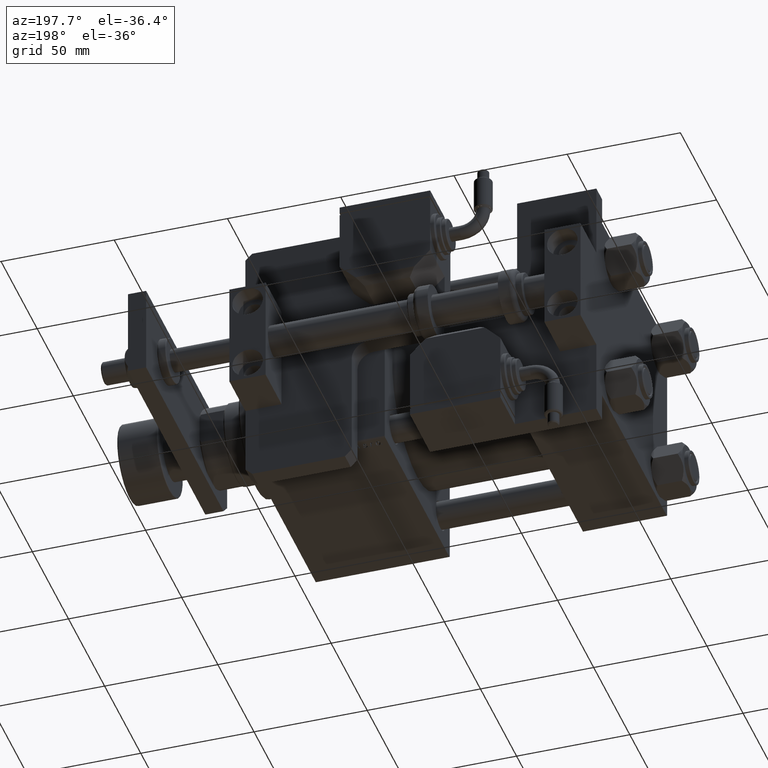
[diagram: clean part render]
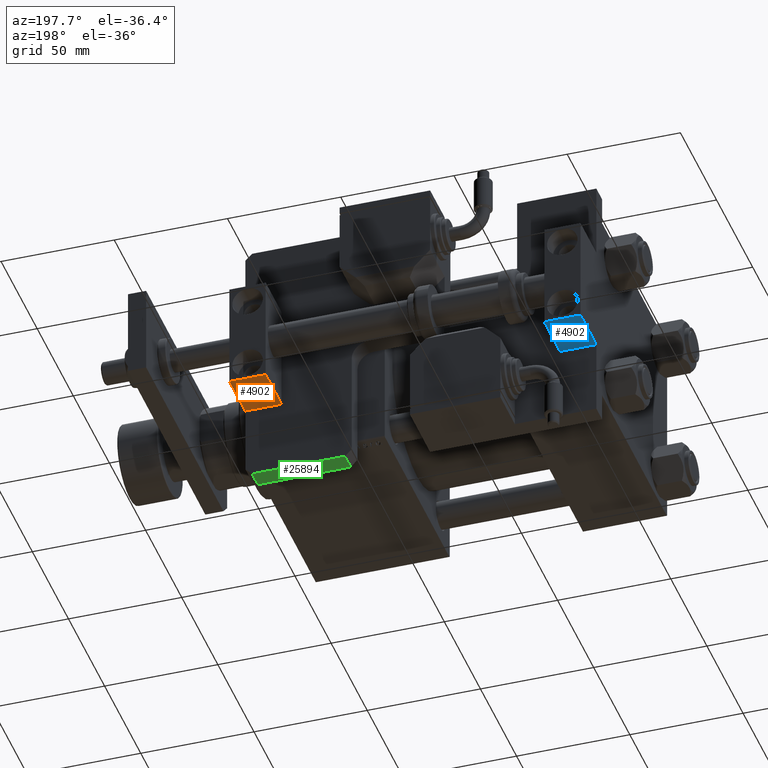
[diagram: same view with three faces highlighted in distinct colors, each labeled with its STEP entity id]
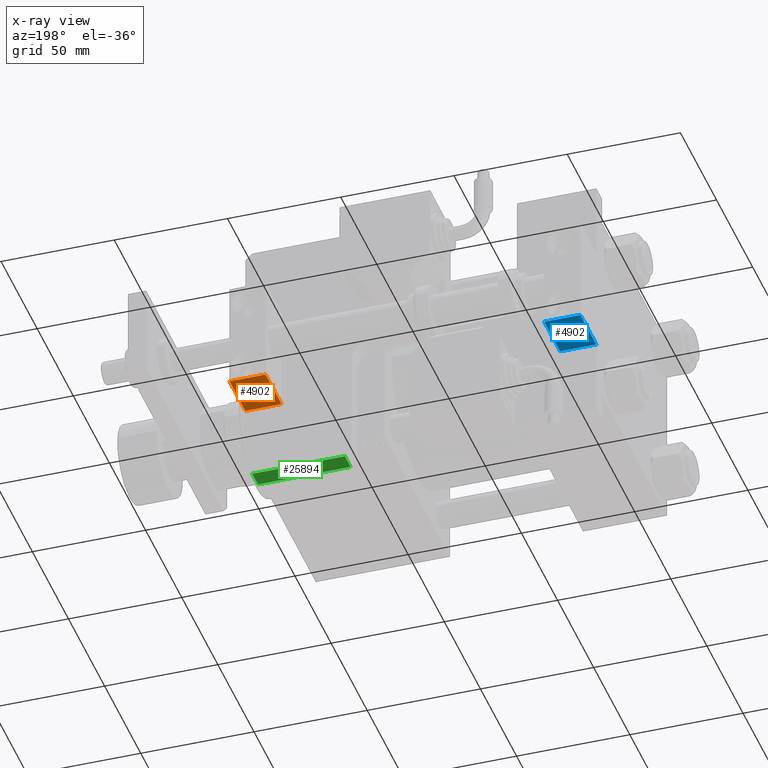
[diagram: x-ray of the same camera — body ghosted, the three highlighted faces saturated]
A machine part, auxiliary view with three faces highlighted in distinct colors.
The next image is the same camera in x-ray (body ghosted, the three faces saturated) — at least one of them is partly hidden behind the body in this view.
Their STEP definitions:

[orange] entity #4902 — the highlighted planar face has unit normal (-0, 0, -1).
#1301 = ORIENTED_EDGE ( 'NONE', *, *, #27152, .F. ) ;
#2455 = EDGE_CURVE ( 'NONE', #24848, #51154, #53995, .T. ) ;
#4024 = EDGE_LOOP ( 'NONE', ( #23439, #1301, #32090, #18817 ) ) ;
#4407 = CARTESIAN_POINT ( 'NONE',  ( 24.00000000000000000, -11.00000000000000000, -16.00000000000000000 ) ) ;
#4457 = DIRECTION ( 'NONE',  ( 1.000000000000000000, 1.577021341797098053E-16, -0.000000000000000000 ) ) ;
#4902 = ADVANCED_FACE ( 'NONE', ( #23409 ), #54729, .T. ) ;
#5379 = DIRECTION ( 'NONE',  ( -1.577021341797098053E-16, 1.000000000000000000, -0.000000000000000000 ) ) ;
#7034 = AXIS2_PLACEMENT_3D ( 'NONE', #39613, #4457, #57457 ) ;
#7253 = LINE ( 'NONE', #7822, #19565 ) ;
#7822 = CARTESIAN_POINT ( 'NONE',  ( 23.99999999999999645, 10.99999999999999289, -16.00000000000000000 ) ) ;
#10626 = VERTEX_POINT ( 'NONE', #4407 ) ;
#11609 = CARTESIAN_POINT ( 'NONE',  ( 23.99999999999999645, 10.99999999999999289, -16.00000000000000000 ) ) ;
#14193 = DIRECTION ( 'NONE',  ( 0.000000000000000000, 0.000000000000000000, 1.000000000000000000 ) ) ;
#16006 = LINE ( 'NONE', #11609, #19235 ) ;
#17836 = CARTESIAN_POINT ( 'NONE',  ( 24.00000000000000000, -11.00000000000000000, 0.000000000000000000 ) ) ;
#18817 = ORIENTED_EDGE ( 'NONE', *, *, #42163, .T. ) ;
#19235 = VECTOR ( 'NONE', #41500, 1000.000000000000000 ) ;
#19565 = VECTOR ( 'NONE', #38583, 1000.000000000000000 ) ;
#23409 = FACE_OUTER_BOUND ( 'NONE', #4024, .T. ) ;
#23439 = ORIENTED_EDGE ( 'NONE', *, *, #2455, .F. ) ;
#24848 = VERTEX_POINT ( 'NONE', #17836 ) ;
#27152 = EDGE_CURVE ( 'NONE', #10626, #24848, #49623, .T. ) ;
#29007 = CARTESIAN_POINT ( 'NONE',  ( 23.99999999999999645, 10.99999999999999289, 0.000000000000000000 ) ) ;
#31083 = EDGE_CURVE ( 'NONE', #10626, #40117, #16006, .T. ) ;
#32090 = ORIENTED_EDGE ( 'NONE', *, *, #31083, .T. ) ;
#35844 = CARTESIAN_POINT ( 'NONE',  ( 23.99999999999999645, 10.99999999999999289, 0.000000000000000000 ) ) ;
#37751 = VECTOR ( 'NONE', #14193, 1000.000000000000000 ) ;
#38583 = DIRECTION ( 'NONE',  ( 0.000000000000000000, 0.000000000000000000, 1.000000000000000000 ) ) ;
#39613 = CARTESIAN_POINT ( 'NONE',  ( 23.99999999999999645, 10.99999999999999289, -16.00000000000000000 ) ) ;
#40117 = VERTEX_POINT ( 'NONE', #48538 ) ;
#41500 = DIRECTION ( 'NONE',  ( -1.577021341797098053E-16, 1.000000000000000000, -0.000000000000000000 ) ) ;
#41569 = VECTOR ( 'NONE', #5379, 1000.000000000000000 ) ;
#42163 = EDGE_CURVE ( 'NONE', #40117, #51154, #7253, .T. ) ;
#48538 = CARTESIAN_POINT ( 'NONE',  ( 23.99999999999999645, 10.99999999999999289, -16.00000000000000000 ) ) ;
#49623 = LINE ( 'NONE', #54293, #37751 ) ;
#51154 = VERTEX_POINT ( 'NONE', #29007 ) ;
#53995 = LINE ( 'NONE', #35844, #41569 ) ;
#54293 = CARTESIAN_POINT ( 'NONE',  ( 24.00000000000000000, -11.00000000000000000, -16.00000000000000000 ) ) ;
#54729 = PLANE ( 'NONE',  #7034 ) ;
#57457 = DIRECTION ( 'NONE',  ( -1.577021341797098053E-16, 1.000000000000000000, 0.000000000000000000 ) ) ;

[blue] entity #4902 — the highlighted planar face has unit normal (-0, 0, -1).
#1301 = ORIENTED_EDGE ( 'NONE', *, *, #27152, .F. ) ;
#2455 = EDGE_CURVE ( 'NONE', #24848, #51154, #53995, .T. ) ;
#4024 = EDGE_LOOP ( 'NONE', ( #23439, #1301, #32090, #18817 ) ) ;
#4407 = CARTESIAN_POINT ( 'NONE',  ( 24.00000000000000000, -11.00000000000000000, -16.00000000000000000 ) ) ;
#4457 = DIRECTION ( 'NONE',  ( 1.000000000000000000, 1.577021341797098053E-16, -0.000000000000000000 ) ) ;
#4902 = ADVANCED_FACE ( 'NONE', ( #23409 ), #54729, .T. ) ;
#5379 = DIRECTION ( 'NONE',  ( -1.577021341797098053E-16, 1.000000000000000000, -0.000000000000000000 ) ) ;
#7034 = AXIS2_PLACEMENT_3D ( 'NONE', #39613, #4457, #57457 ) ;
#7253 = LINE ( 'NONE', #7822, #19565 ) ;
#7822 = CARTESIAN_POINT ( 'NONE',  ( 23.99999999999999645, 10.99999999999999289, -16.00000000000000000 ) ) ;
#10626 = VERTEX_POINT ( 'NONE', #4407 ) ;
#11609 = CARTESIAN_POINT ( 'NONE',  ( 23.99999999999999645, 10.99999999999999289, -16.00000000000000000 ) ) ;
#14193 = DIRECTION ( 'NONE',  ( 0.000000000000000000, 0.000000000000000000, 1.000000000000000000 ) ) ;
#16006 = LINE ( 'NONE', #11609, #19235 ) ;
#17836 = CARTESIAN_POINT ( 'NONE',  ( 24.00000000000000000, -11.00000000000000000, 0.000000000000000000 ) ) ;
#18817 = ORIENTED_EDGE ( 'NONE', *, *, #42163, .T. ) ;
#19235 = VECTOR ( 'NONE', #41500, 1000.000000000000000 ) ;
#19565 = VECTOR ( 'NONE', #38583, 1000.000000000000000 ) ;
#23409 = FACE_OUTER_BOUND ( 'NONE', #4024, .T. ) ;
#23439 = ORIENTED_EDGE ( 'NONE', *, *, #2455, .F. ) ;
#24848 = VERTEX_POINT ( 'NONE', #17836 ) ;
#27152 = EDGE_CURVE ( 'NONE', #10626, #24848, #49623, .T. ) ;
#29007 = CARTESIAN_POINT ( 'NONE',  ( 23.99999999999999645, 10.99999999999999289, 0.000000000000000000 ) ) ;
#31083 = EDGE_CURVE ( 'NONE', #10626, #40117, #16006, .T. ) ;
#32090 = ORIENTED_EDGE ( 'NONE', *, *, #31083, .T. ) ;
#35844 = CARTESIAN_POINT ( 'NONE',  ( 23.99999999999999645, 10.99999999999999289, 0.000000000000000000 ) ) ;
#37751 = VECTOR ( 'NONE', #14193, 1000.000000000000000 ) ;
#38583 = DIRECTION ( 'NONE',  ( 0.000000000000000000, 0.000000000000000000, 1.000000000000000000 ) ) ;
#39613 = CARTESIAN_POINT ( 'NONE',  ( 23.99999999999999645, 10.99999999999999289, -16.00000000000000000 ) ) ;
#40117 = VERTEX_POINT ( 'NONE', #48538 ) ;
#41500 = DIRECTION ( 'NONE',  ( -1.577021341797098053E-16, 1.000000000000000000, -0.000000000000000000 ) ) ;
#41569 = VECTOR ( 'NONE', #5379, 1000.000000000000000 ) ;
#42163 = EDGE_CURVE ( 'NONE', #40117, #51154, #7253, .T. ) ;
#48538 = CARTESIAN_POINT ( 'NONE',  ( 23.99999999999999645, 10.99999999999999289, -16.00000000000000000 ) ) ;
#49623 = LINE ( 'NONE', #54293, #37751 ) ;
#51154 = VERTEX_POINT ( 'NONE', #29007 ) ;
#53995 = LINE ( 'NONE', #35844, #41569 ) ;
#54293 = CARTESIAN_POINT ( 'NONE',  ( 24.00000000000000000, -11.00000000000000000, -16.00000000000000000 ) ) ;
#54729 = PLANE ( 'NONE',  #7034 ) ;
#57457 = DIRECTION ( 'NONE',  ( -1.577021341797098053E-16, 1.000000000000000000, 0.000000000000000000 ) ) ;

[green] entity #25894 — the highlighted planar face has unit normal (0, 0, 1).
#1132 = CARTESIAN_POINT ( 'NONE',  ( 114.9999999999999858, 43.99999999999998579, 8.000000000000000000 ) ) ;
#1180 = ORIENTED_EDGE ( 'NONE', *, *, #23964, .F. ) ;
#1932 = EDGE_CURVE ( 'NONE', #15160, #22986, #46503, .T. ) ;
#3150 = CARTESIAN_POINT ( 'NONE',  ( 114.9999999999999858, 0.000000000000000000, 8.000000000000000000 ) ) ;
#3349 = DIRECTION ( 'NONE',  ( 0.000000000000000000, 1.000000000000000000, 0.000000000000000000 ) ) ;
#3643 = CARTESIAN_POINT ( 'NONE',  ( 114.9999999999999858, 0.000000000000000000, 8.000000000000000000 ) ) ;
#4564 = ORIENTED_EDGE ( 'NONE', *, *, #38876, .T. ) ;
#6389 = CARTESIAN_POINT ( 'NONE',  ( 114.9999999999999858, 2.999999999999975131, 8.000000000000000000 ) ) ;
#6951 = CARTESIAN_POINT ( 'NONE',  ( 114.9999999999999858, 2.999999999999975131, 0.000000000000000000 ) ) ;
#7172 = LINE ( 'NONE', #3643, #38595 ) ;
#8716 = AXIS2_PLACEMENT_3D ( 'NONE', #3150, #20447, #16052 ) ;
#11001 = VECTOR ( 'NONE', #55717, 1000.000000000000000 ) ;
#12313 = ORIENTED_EDGE ( 'NONE', *, *, #33514, .T. ) ;
#15050 = CARTESIAN_POINT ( 'NONE',  ( 114.9999999999999858, 0.000000000000000000, 0.000000000000000000 ) ) ;
#15160 = VERTEX_POINT ( 'NONE', #35703 ) ;
#16052 = DIRECTION ( 'NONE',  ( 0.000000000000000000, 0.000000000000000000, 1.000000000000000000 ) ) ;
#16649 = VERTEX_POINT ( 'NONE', #1132 ) ;
#19041 = CARTESIAN_POINT ( 'NONE',  ( 114.9999999999999858, 43.99999999999998579, 0.000000000000000000 ) ) ;
#19319 = VECTOR ( 'NONE', #32387, 1000.000000000000000 ) ;
#20447 = DIRECTION ( 'NONE',  ( -1.000000000000000000, 0.000000000000000000, 0.000000000000000000 ) ) ;
#22986 = VERTEX_POINT ( 'NONE', #6951 ) ;
#23964 = EDGE_CURVE ( 'NONE', #15160, #16649, #7172, .T. ) ;
#24254 = DIRECTION ( 'NONE',  ( 0.000000000000000000, 0.000000000000000000, -1.000000000000000000 ) ) ;
#25894 = ADVANCED_FACE ( 'NONE', ( #52052 ), #29804, .F. ) ;
#28007 = CARTESIAN_POINT ( 'NONE',  ( 114.9999999999999858, 43.99999999999998579, 8.000000000000000000 ) ) ;
#28451 = VECTOR ( 'NONE', #24254, 1000.000000000000000 ) ;
#28804 = LINE ( 'NONE', #15050, #11001 ) ;
#29720 = EDGE_LOOP ( 'NONE', ( #4564, #12313, #1180, #32712 ) ) ;
#29804 = PLANE ( 'NONE',  #8716 ) ;
#32387 = DIRECTION ( 'NONE',  ( 0.000000000000000000, 0.000000000000000000, 1.000000000000000000 ) ) ;
#32712 = ORIENTED_EDGE ( 'NONE', *, *, #1932, .T. ) ;
#33514 = EDGE_CURVE ( 'NONE', #57287, #16649, #37065, .T. ) ;
#35703 = CARTESIAN_POINT ( 'NONE',  ( 114.9999999999999858, 2.999999999999975131, 8.000000000000000000 ) ) ;
#37065 = LINE ( 'NONE', #28007, #19319 ) ;
#38595 = VECTOR ( 'NONE', #3349, 1000.000000000000000 ) ;
#38876 = EDGE_CURVE ( 'NONE', #22986, #57287, #28804, .T. ) ;
#46503 = LINE ( 'NONE', #6389, #28451 ) ;
#52052 = FACE_OUTER_BOUND ( 'NONE', #29720, .T. ) ;
#55717 = DIRECTION ( 'NONE',  ( 0.000000000000000000, 1.000000000000000000, 0.000000000000000000 ) ) ;
#57287 = VERTEX_POINT ( 'NONE', #19041 ) ;